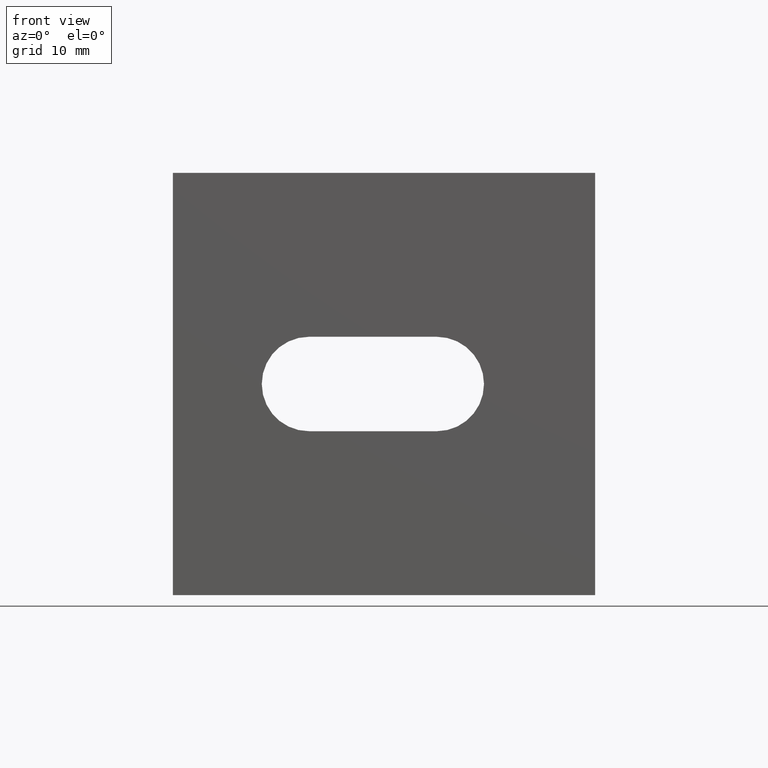
[diagram: clean part render]
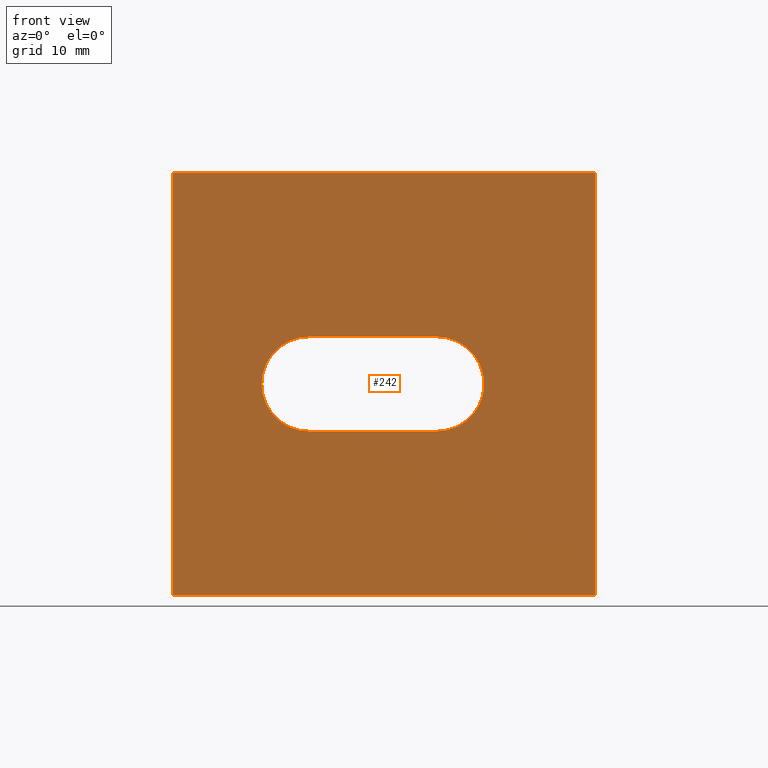
[diagram: same view with one face highlighted and labeled with its STEP entity id]
A machine part, front view. The second image highlights one B-rep face of the part: STEP entity #242.
In plain terms, the highlighted planar face has unit normal (0, -1, 0).
Its self-contained STEP definition (entity closure, byte-faithful):
#125=CARTESIAN_POINT('',(-37.999999999848114,0.0,-19.0));
#126=VERTEX_POINT('',#125);
#133=CARTESIAN_POINT('',(-37.999999999848114,0.0,19.0));
#134=VERTEX_POINT('',#133);
#135=CARTESIAN_POINT('',(-37.999999999848114,0.0,-19.0));
#136=DIRECTION('',(0.0,0.0,1.0));
#137=VECTOR('',#136,38.0);
#138=LINE('',#135,#137);
#139=EDGE_CURVE('',#126,#134,#138,.T.);
#158=CARTESIAN_POINT('',(-37.999999999848114,0.0,-19.0));
#159=DIRECTION('',(0.0,-1.0,0.0));
#160=DIRECTION('',(1.0,0.0,0.0));
#161=AXIS2_PLACEMENT_3D('',#158,#159,#160);
#162=PLANE('',#161);
#163=CARTESIAN_POINT('',(0.0,0.0,-19.0));
#164=VERTEX_POINT('',#163);
#165=CARTESIAN_POINT('',(-37.999999999848114,0.0,-19.0));
#166=DIRECTION('',(1.0,0.0,0.0));
#167=VECTOR('',#166,37.999999999848114);
#168=LINE('',#165,#167);
#169=EDGE_CURVE('',#126,#164,#168,.T.);
#170=ORIENTED_EDGE('',*,*,#169,.T.);
#171=CARTESIAN_POINT('',(0.0,0.0,19.0));
#172=VERTEX_POINT('',#171);
#173=CARTESIAN_POINT('',(0.0,0.0,-19.0));
#174=DIRECTION('',(0.0,0.0,1.0));
#175=VECTOR('',#174,38.0);
#176=LINE('',#173,#175);
#177=EDGE_CURVE('',#164,#172,#176,.T.);
#178=ORIENTED_EDGE('',*,*,#177,.T.);
#179=CARTESIAN_POINT('',(-37.999999999848114,0.0,19.0));
#180=DIRECTION('',(1.0,0.0,0.0));
#181=VECTOR('',#180,37.999999999848114);
#182=LINE('',#179,#181);
#183=EDGE_CURVE('',#134,#172,#182,.T.);
#184=ORIENTED_EDGE('',*,*,#183,.F.);
#185=ORIENTED_EDGE('',*,*,#139,.F.);
#186=EDGE_LOOP('',(#170,#178,#184,#185));
#187=FACE_OUTER_BOUND('',#186,.T.);
#188=CARTESIAN_POINT('',(-14.249999999959982,0.0,-4.249999999983624));
#189=VERTEX_POINT('',#188);
#190=CARTESIAN_POINT('',(-9.999999999959982,0.0,1.637631E-011));
#191=VERTEX_POINT('',#190);
#192=CARTESIAN_POINT('',(-14.249999999959982,0.0,1.637623E-011));
#193=DIRECTION('',(0.0,-1.0,0.0));
#194=DIRECTION('',(0.0,0.0,-1.0));
#195=AXIS2_PLACEMENT_3D('',#192,#193,#194);
#196=CIRCLE('',#195,4.250000000000000);
#197=EDGE_CURVE('',#189,#191,#196,.T.);
#198=ORIENTED_EDGE('',*,*,#197,.F.);
#199=CARTESIAN_POINT('',(-25.749999999879947,0.0,-4.249999999983626));
#200=VERTEX_POINT('',#199);
#201=CARTESIAN_POINT('',(-25.749999999879947,0.0,-4.249999999983626));
#202=DIRECTION('',(1.0,0.0,0.0));
#203=VECTOR('',#202,11.499999999919964);
#204=LINE('',#201,#203);
#205=EDGE_CURVE('',#200,#189,#204,.T.);
#206=ORIENTED_EDGE('',*,*,#205,.F.);
#207=CARTESIAN_POINT('',(-29.999999999879947,0.0,1.637316E-011));
#208=VERTEX_POINT('',#207);
#209=CARTESIAN_POINT('',(-25.749999999879947,0.0,1.637342E-011));
#210=DIRECTION('',(0.0,-1.0,0.0));
#211=DIRECTION('',(0.0,0.0,-1.0));
#212=AXIS2_PLACEMENT_3D('',#209,#210,#211);
#213=CIRCLE('',#212,4.250000000000000);
#214=EDGE_CURVE('',#208,#200,#213,.T.);
#215=ORIENTED_EDGE('',*,*,#214,.F.);
#216=CARTESIAN_POINT('',(-25.749999999879947,0.0,4.250000000016374));
#217=VERTEX_POINT('',#216);
#218=CARTESIAN_POINT('',(-25.749999999879947,0.0,1.637342E-011));
#219=DIRECTION('',(0.0,-1.0,0.0));
#220=DIRECTION('',(0.0,0.0,1.0));
#221=AXIS2_PLACEMENT_3D('',#218,#219,#220);
#222=CIRCLE('',#221,4.250000000000000);
#223=EDGE_CURVE('',#217,#208,#222,.T.);
#224=ORIENTED_EDGE('',*,*,#223,.F.);
#225=CARTESIAN_POINT('',(-14.249999999959982,0.0,4.250000000016375));
#226=VERTEX_POINT('',#225);
#227=CARTESIAN_POINT('',(-14.249999999959982,0.0,4.250000000016375));
#228=DIRECTION('',(-1.0,0.0,0.0));
#229=VECTOR('',#228,11.499999999919964);
#230=LINE('',#227,#229);
#231=EDGE_CURVE('',#226,#217,#230,.T.);
#232=ORIENTED_EDGE('',*,*,#231,.F.);
#233=CARTESIAN_POINT('',(-14.249999999959982,0.0,1.637511E-011));
#234=DIRECTION('',(0.0,-1.0,0.0));
#235=DIRECTION('',(0.0,0.0,1.0));
#236=AXIS2_PLACEMENT_3D('',#233,#234,#235);
#237=CIRCLE('',#236,4.250000000000000);
#238=EDGE_CURVE('',#191,#226,#237,.T.);
#239=ORIENTED_EDGE('',*,*,#238,.F.);
#240=EDGE_LOOP('',(#198,#206,#215,#224,#232,#239));
#241=FACE_BOUND('',#240,.T.);
#242=ADVANCED_FACE('',(#187,#241),#162,.T.);